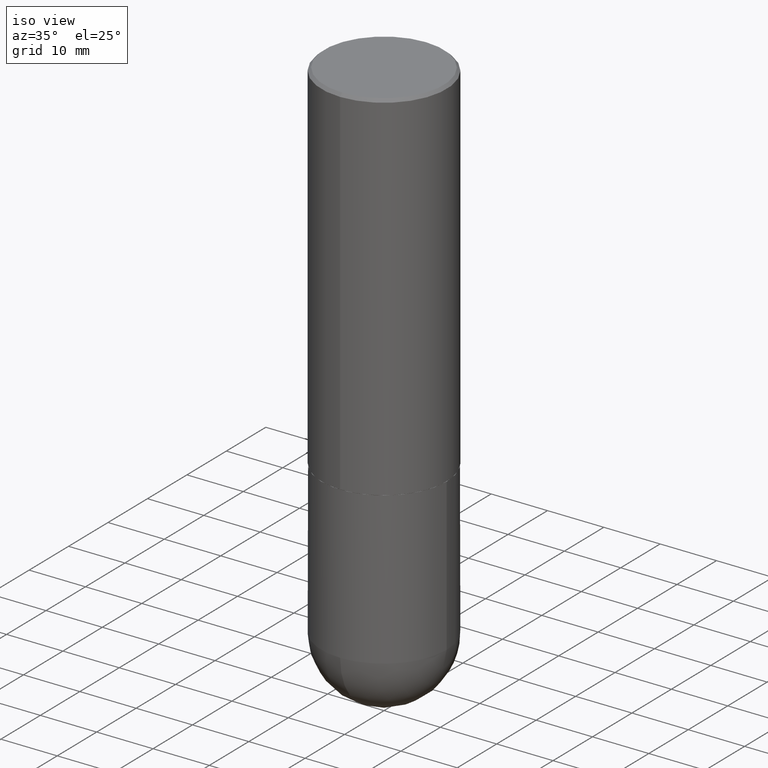
[diagram: clean part render]
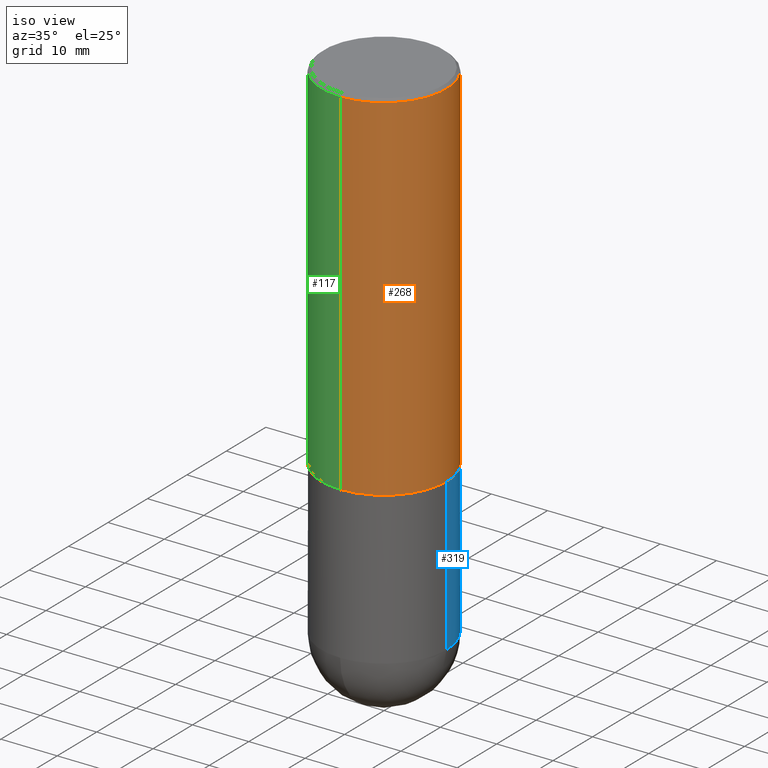
[diagram: same view with three faces highlighted in distinct colors, each labeled with its STEP entity id]
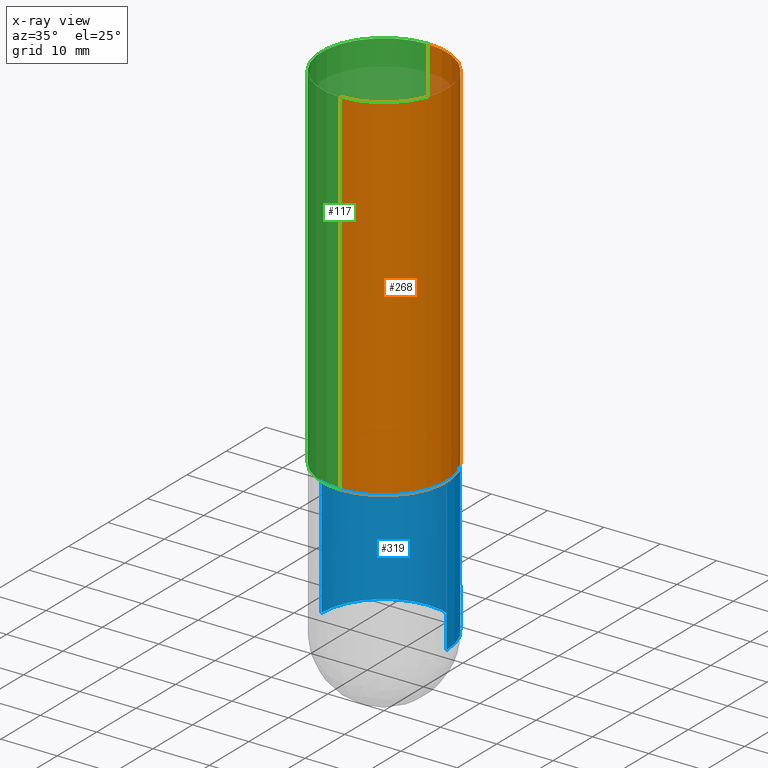
[diagram: x-ray of the same camera — body ghosted, the three highlighted faces saturated]
A machine part, iso view with three faces highlighted in distinct colors.
The next image is the same camera in x-ray (body ghosted, the three faces saturated) — at least one of them is partly hidden behind the body in this view.
Their STEP definitions:

[orange] entity #268 — the highlighted cylindrical surface (partial cylindrical patch) has radius 11.1125 mm, axis along (-0, 0, 1).
#1 = FACE_OUTER_BOUND ( 'NONE', #221, .T. ) ;
#7 = DIRECTION ( 'NONE',  ( -6.982962677686265133E-15, -1.000000000000000000, 3.492862791899308071E-15 ) ) ;
#25 = VERTEX_POINT ( 'NONE', #321 ) ;
#35 = DIRECTION ( 'NONE',  ( -2.446520268099652630E-29, 3.489975585536062903E-15, 1.000000000000000000 ) ) ;
#47 = CARTESIAN_POINT ( 'NONE',  ( 3.108624468950470262E-15, 0.4374999999999915068, -2.499000000000001886 ) ) ;
#58 = DIRECTION ( 'NONE',  ( -2.446520268099652630E-29, 3.489975585536062903E-15, 1.000000000000000000 ) ) ;
#78 = CARTESIAN_POINT ( 'NONE',  ( 3.108624468950438708E-15, 0.4375000000000001110, -1.526864318672027939E-15 ) ) ;
#80 = CARTESIAN_POINT ( 'NONE',  ( -3.001467874025043875E-15, -0.4375000000000000555, -0.01999999999999857100 ) ) ;
#94 = CYLINDRICAL_SURFACE ( 'NONE', #412, 0.4375000000000001110 ) ;
#107 = ORIENTED_EDGE ( 'NONE', *, *, #178, .T. ) ;
#136 = VECTOR ( 'NONE', #251, 39.37007874015748143 ) ;
#145 = AXIS2_PLACEMENT_3D ( 'NONE', #173, #35, #176 ) ;
#153 = VERTEX_POINT ( 'NONE', #47 ) ;
#156 = CIRCLE ( 'NONE', #145, 0.4375000000000002776 ) ;
#161 = VERTEX_POINT ( 'NONE', #80 ) ;
#173 = CARTESIAN_POINT ( 'NONE',  ( 6.113854149981033181E-29, -8.721448988254622305E-15, -2.499000000000000110 ) ) ;
#176 = DIRECTION ( 'NONE',  ( -6.982962677686265133E-15, -1.000000000000000000, 3.746534391310987190E-15 ) ) ;
#178 = EDGE_CURVE ( 'NONE', #370, #153, #156, .T. ) ;
#188 = VECTOR ( 'NONE', #205, 39.37007874015748143 ) ;
#191 = CARTESIAN_POINT ( 'NONE',  ( 4.893040536199329818E-31, -6.979951171072159925E-17, -0.02000000000000009756 ) ) ;
#193 = ORIENTED_EDGE ( 'NONE', *, *, #242, .F. ) ;
#199 = CIRCLE ( 'NONE', #387, 0.4375000000000000000 ) ;
#205 = DIRECTION ( 'NONE',  ( -2.446520268099652630E-29, 3.489975585536062903E-15, 1.000000000000000000 ) ) ;
#214 = EDGE_CURVE ( 'NONE', #153, #25, #396, .T. ) ;
#221 = EDGE_LOOP ( 'NONE', ( #107, #309, #313, #193 ) ) ;
#222 = CARTESIAN_POINT ( 'NONE',  ( -3.055046171487742080E-15, -0.4375000000000001110, 1.526864318672027939E-15 ) ) ;
#225 = LINE ( 'NONE', #222, #136 ) ;
#242 = EDGE_CURVE ( 'NONE', #370, #161, #225, .T. ) ;
#251 = DIRECTION ( 'NONE',  ( -2.446520268099652630E-29, 3.489975585536062903E-15, 1.000000000000000000 ) ) ;
#256 = DIRECTION ( 'NONE',  ( -6.982962677686265922E-15, -1.000000000000000000, 3.489975585536062903E-15 ) ) ;
#268 = ADVANCED_FACE ( 'NONE', ( #1 ), #94, .T. ) ;
#294 = DIRECTION ( 'NONE',  ( -2.446520268099652630E-29, 3.489975585536062903E-15, 1.000000000000000000 ) ) ;
#299 = CARTESIAN_POINT ( 'NONE',  ( -3.055046171487681732E-15, -0.4375000000000089928, -2.498999999999998778 ) ) ;
#309 = ORIENTED_EDGE ( 'NONE', *, *, #214, .T. ) ;
#313 = ORIENTED_EDGE ( 'NONE', *, *, #369, .F. ) ;
#321 = CARTESIAN_POINT ( 'NONE',  ( 3.055046171487741686E-15, 0.4374999999999998890, -0.02000000000000162759 ) ) ;
#344 = CARTESIAN_POINT ( 'NONE',  ( 0.000000000000000000, 0.000000000000000000, 0.000000000000000000 ) ) ;
#369 = EDGE_CURVE ( 'NONE', #161, #25, #199, .T. ) ;
#370 = VERTEX_POINT ( 'NONE', #299 ) ;
#387 = AXIS2_PLACEMENT_3D ( 'NONE', #191, #294, #7 ) ;
#396 = LINE ( 'NONE', #78, #188 ) ;
#412 = AXIS2_PLACEMENT_3D ( 'NONE', #344, #58, #256 ) ;

[blue] entity #319 — the highlighted cylindrical surface (partial cylindrical patch) has radius 11.1125 mm, axis along (-0, 0, 1).
#4 = CARTESIAN_POINT ( 'NONE',  ( 0.000000000000000000, 0.000000000000000000, 0.000000000000000000 ) ) ;
#13 = CARTESIAN_POINT ( 'NONE',  ( 3.055046171487827277E-15, 0.4374999999999873435, -3.562500000000001776 ) ) ;
#17 = CIRCLE ( 'NONE', #56, 0.4374999999999998890 ) ;
#37 = CYLINDRICAL_SURFACE ( 'NONE', #63, 0.4374999999999998890 ) ;
#45 = DIRECTION ( 'NONE',  ( -2.445468806185136877E-29, 3.491481338843145188E-15, 1.000000000000000000 ) ) ;
#55 = EDGE_LOOP ( 'NONE', ( #246, #207, #190, #133, #339 ) ) ;
#56 = AXIS2_PLACEMENT_3D ( 'NONE', #363, #172, #206 ) ;
#63 = AXIS2_PLACEMENT_3D ( 'NONE', #4, #273, #233 ) ;
#66 = VERTEX_POINT ( 'NONE', #168 ) ;
#83 = VECTOR ( 'NONE', #45, 39.37007874015748143 ) ;
#112 = DIRECTION ( 'NONE',  ( 1.000000000000000000, -6.982962677686265133E-15, 0.000000000000000000 ) ) ;
#115 = VECTOR ( 'NONE', #389, 39.37007874015748143 ) ;
#131 = CARTESIAN_POINT ( 'NONE',  ( 8.711982622034549126E-29, -1.243840226962870597E-14, -3.562500000000000000 ) ) ;
#133 = ORIENTED_EDGE ( 'NONE', *, *, #325, .F. ) ;
#149 = CARTESIAN_POINT ( 'NONE',  ( 6.113672015462842613E-29, -8.728703347107864943E-15, -2.500000000000000000 ) ) ;
#150 = EDGE_CURVE ( 'NONE', #66, #228, #361, .T. ) ;
#163 = CARTESIAN_POINT ( 'NONE',  ( 0.4374999999999998890, -3.055046171487740897E-15, 2.133327339410721209E-29 ) ) ;
#168 = CARTESIAN_POINT ( 'NONE',  ( -0.4374999999999998890, -7.474928339417851874E-15, -3.562500000000000000 ) ) ;
#172 = DIRECTION ( 'NONE',  ( -2.445468806185136597E-29, 3.491481338843145583E-15, 1.000000000000000000 ) ) ;
#184 = AXIS2_PLACEMENT_3D ( 'NONE', #131, #378, #345 ) ;
#190 = ORIENTED_EDGE ( 'NONE', *, *, #203, .F. ) ;
#203 = EDGE_CURVE ( 'NONE', #249, #228, #395, .T. ) ;
#206 = DIRECTION ( 'NONE',  ( 1.000000000000000000, -6.982962677686265133E-15, 0.000000000000000000 ) ) ;
#207 = ORIENTED_EDGE ( 'NONE', *, *, #150, .T. ) ;
#210 = DIRECTION ( 'NONE',  ( -2.445468806185136597E-29, 3.491481338843145583E-15, 1.000000000000000000 ) ) ;
#228 = VERTEX_POINT ( 'NONE', #329 ) ;
#233 = DIRECTION ( 'NONE',  ( 1.000000000000000000, -6.982962677686266711E-15, 4.876176775795935232E-29 ) ) ;
#239 = FACE_OUTER_BOUND ( 'NONE', #55, .T. ) ;
#246 = ORIENTED_EDGE ( 'NONE', *, *, #305, .T. ) ;
#249 = VERTEX_POINT ( 'NONE', #288 ) ;
#260 = EDGE_CURVE ( 'NONE', #405, #341, #264, .T. ) ;
#264 = CIRCLE ( 'NONE', #184, 0.4374999999999998890 ) ;
#267 = LINE ( 'NONE', #163, #115 ) ;
#273 = DIRECTION ( 'NONE',  ( -2.445468806185136597E-29, 3.491481338843145583E-15, 1.000000000000000000 ) ) ;
#288 = CARTESIAN_POINT ( 'NONE',  ( 0.4375000000000000000, -1.178374951859560505E-14, -2.500000000000000000 ) ) ;
#290 = AXIS2_PLACEMENT_3D ( 'NONE', #149, #210, #112 ) ;
#305 = EDGE_CURVE ( 'NONE', #341, #66, #17, .T. ) ;
#319 = ADVANCED_FACE ( 'NONE', ( #239 ), #37, .T. ) ;
#323 = CARTESIAN_POINT ( 'NONE',  ( 0.4374999999999998890, -1.363859897985603030E-14, -3.562500000000000000 ) ) ;
#325 = EDGE_CURVE ( 'NONE', #405, #249, #267, .T. ) ;
#329 = CARTESIAN_POINT ( 'NONE',  ( -0.4375000000000000000, -7.474928339417847141E-15, -2.500000000000000000 ) ) ;
#332 = CARTESIAN_POINT ( 'NONE',  ( -0.4374999999999998890, 3.108624468950437524E-15, -2.152034101986520964E-29 ) ) ;
#339 = ORIENTED_EDGE ( 'NONE', *, *, #260, .T. ) ;
#341 = VERTEX_POINT ( 'NONE', #13 ) ;
#345 = DIRECTION ( 'NONE',  ( 1.000000000000000000, -6.982962677686265133E-15, 0.000000000000000000 ) ) ;
#361 = LINE ( 'NONE', #332, #83 ) ;
#363 = CARTESIAN_POINT ( 'NONE',  ( 8.711982622034549126E-29, -1.243840226962870597E-14, -3.562500000000000000 ) ) ;
#378 = DIRECTION ( 'NONE',  ( -2.445468806185136597E-29, 3.491481338843145583E-15, 1.000000000000000000 ) ) ;
#389 = DIRECTION ( 'NONE',  ( -2.445468806185136877E-29, 3.491481338843145188E-15, 1.000000000000000000 ) ) ;
#395 = CIRCLE ( 'NONE', #290, 0.4375000000000000000 ) ;
#405 = VERTEX_POINT ( 'NONE', #323 ) ;

[green] entity #117 — the highlighted cylindrical surface (partial cylindrical patch) has radius 11.1125 mm, axis along (-0, 0, 1).
#6 = ORIENTED_EDGE ( 'NONE', *, *, #241, .T. ) ;
#21 = AXIS2_PLACEMENT_3D ( 'NONE', #287, #411, #375 ) ;
#25 = VERTEX_POINT ( 'NONE', #321 ) ;
#47 = CARTESIAN_POINT ( 'NONE',  ( 3.108624468950470262E-15, 0.4374999999999915068, -2.499000000000001886 ) ) ;
#51 = CIRCLE ( 'NONE', #175, 0.4375000000000000000 ) ;
#61 = DIRECTION ( 'NONE',  ( -2.446520268099652630E-29, 3.489975585536062903E-15, 1.000000000000000000 ) ) ;
#67 = DIRECTION ( 'NONE',  ( -2.446520268099652630E-29, 3.489975585536062903E-15, 1.000000000000000000 ) ) ;
#78 = CARTESIAN_POINT ( 'NONE',  ( 3.108624468950438708E-15, 0.4375000000000001110, -1.526864318672027939E-15 ) ) ;
#80 = CARTESIAN_POINT ( 'NONE',  ( -3.001467874025043875E-15, -0.4375000000000000555, -0.01999999999999857100 ) ) ;
#117 = ADVANCED_FACE ( 'NONE', ( #279 ), #248, .T. ) ;
#124 = ORIENTED_EDGE ( 'NONE', *, *, #242, .T. ) ;
#136 = VECTOR ( 'NONE', #251, 39.37007874015748143 ) ;
#138 = ORIENTED_EDGE ( 'NONE', *, *, #377, .F. ) ;
#153 = VERTEX_POINT ( 'NONE', #47 ) ;
#160 = CIRCLE ( 'NONE', #213, 0.4375000000000002776 ) ;
#161 = VERTEX_POINT ( 'NONE', #80 ) ;
#175 = AXIS2_PLACEMENT_3D ( 'NONE', #353, #67, #194 ) ;
#188 = VECTOR ( 'NONE', #205, 39.37007874015748143 ) ;
#194 = DIRECTION ( 'NONE',  ( -6.982962677686265133E-15, -1.000000000000000000, 3.492862791899308071E-15 ) ) ;
#205 = DIRECTION ( 'NONE',  ( -2.446520268099652630E-29, 3.489975585536062903E-15, 1.000000000000000000 ) ) ;
#213 = AXIS2_PLACEMENT_3D ( 'NONE', #346, #61, #374 ) ;
#214 = EDGE_CURVE ( 'NONE', #153, #25, #396, .T. ) ;
#222 = CARTESIAN_POINT ( 'NONE',  ( -3.055046171487742080E-15, -0.4375000000000001110, 1.526864318672027939E-15 ) ) ;
#225 = LINE ( 'NONE', #222, #136 ) ;
#241 = EDGE_CURVE ( 'NONE', #153, #370, #160, .T. ) ;
#242 = EDGE_CURVE ( 'NONE', #370, #161, #225, .T. ) ;
#248 = CYLINDRICAL_SURFACE ( 'NONE', #21, 0.4375000000000001110 ) ;
#251 = DIRECTION ( 'NONE',  ( -2.446520268099652630E-29, 3.489975585536062903E-15, 1.000000000000000000 ) ) ;
#279 = FACE_OUTER_BOUND ( 'NONE', #320, .T. ) ;
#287 = CARTESIAN_POINT ( 'NONE',  ( 0.000000000000000000, 0.000000000000000000, 0.000000000000000000 ) ) ;
#299 = CARTESIAN_POINT ( 'NONE',  ( -3.055046171487681732E-15, -0.4375000000000089928, -2.498999999999998778 ) ) ;
#320 = EDGE_LOOP ( 'NONE', ( #401, #6, #124, #138 ) ) ;
#321 = CARTESIAN_POINT ( 'NONE',  ( 3.055046171487741686E-15, 0.4374999999999998890, -0.02000000000000162759 ) ) ;
#346 = CARTESIAN_POINT ( 'NONE',  ( 6.113854149981033181E-29, -8.721448988254622305E-15, -2.499000000000000110 ) ) ;
#353 = CARTESIAN_POINT ( 'NONE',  ( 4.893040536199329818E-31, -6.979951171072159925E-17, -0.02000000000000009756 ) ) ;
#370 = VERTEX_POINT ( 'NONE', #299 ) ;
#374 = DIRECTION ( 'NONE',  ( -6.982962677686265133E-15, -1.000000000000000000, 3.746534391310987190E-15 ) ) ;
#375 = DIRECTION ( 'NONE',  ( -6.982962677686265922E-15, -1.000000000000000000, 3.489975585536062903E-15 ) ) ;
#377 = EDGE_CURVE ( 'NONE', #25, #161, #51, .T. ) ;
#396 = LINE ( 'NONE', #78, #188 ) ;
#401 = ORIENTED_EDGE ( 'NONE', *, *, #214, .F. ) ;
#411 = DIRECTION ( 'NONE',  ( -2.446520268099652630E-29, 3.489975585536062903E-15, 1.000000000000000000 ) ) ;